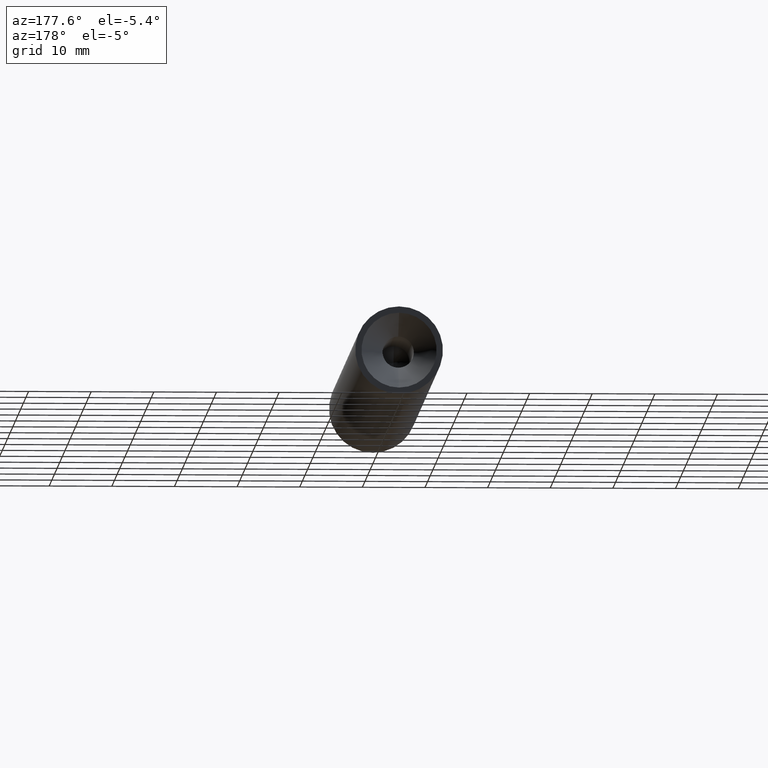
[diagram: clean part render]
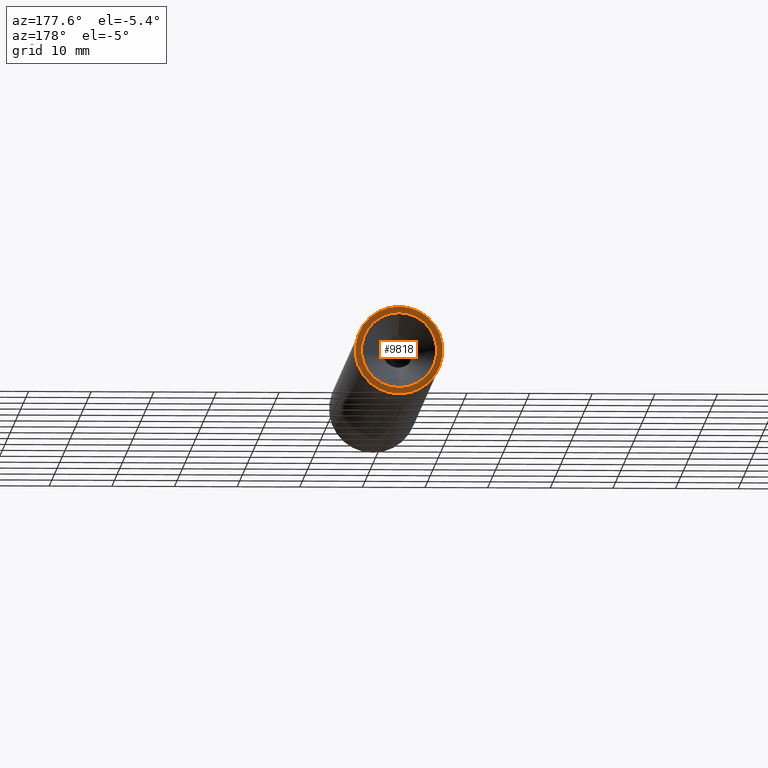
[diagram: same view with one face highlighted and labeled with its STEP entity id]
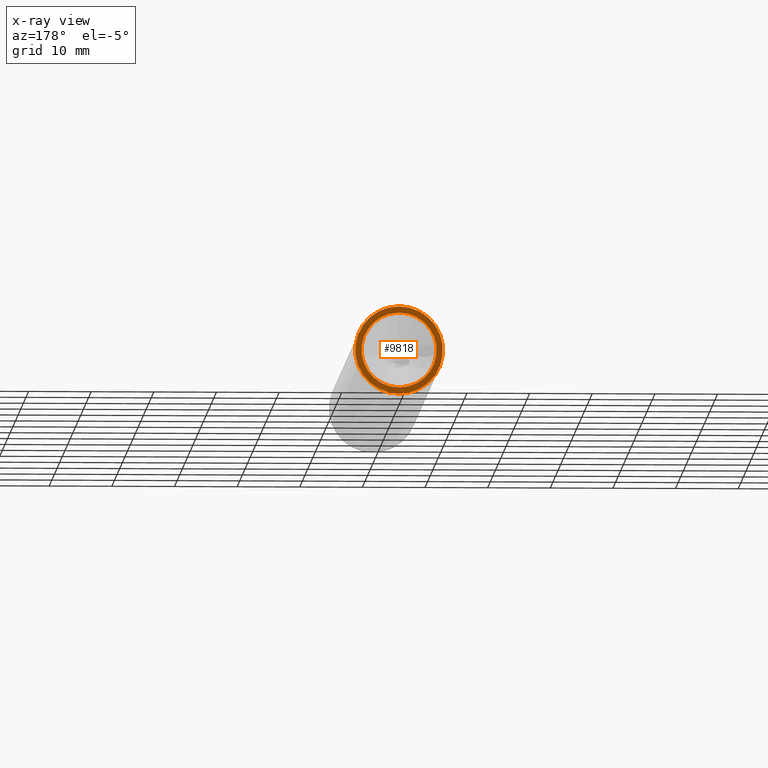
[diagram: x-ray of the same camera — body ghosted, the highlighted face saturated]
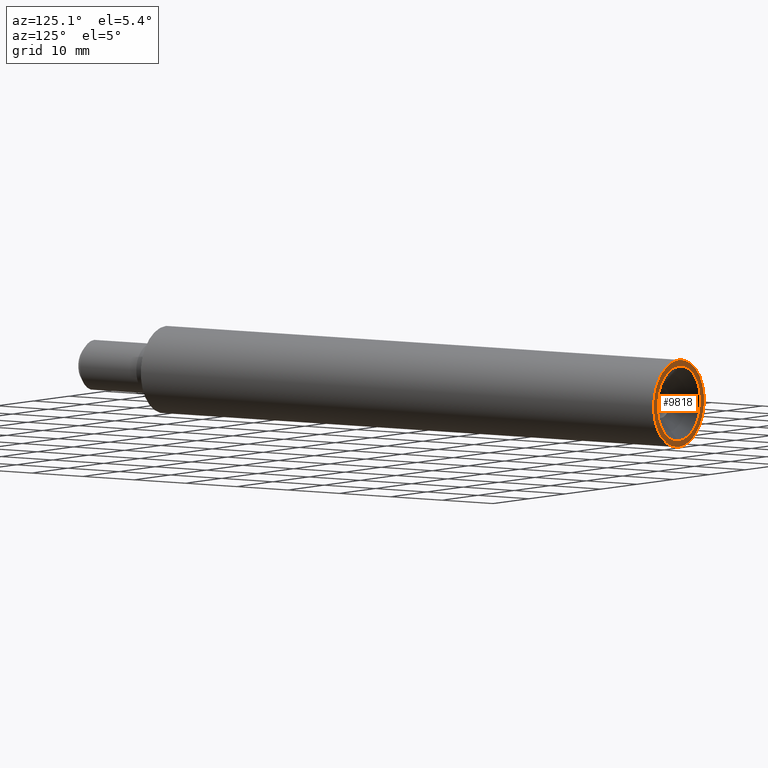
[diagram: same view with one face highlighted and labeled with its STEP entity id]
A machine part, auxiliary view. The second image highlights one B-rep face of the part: STEP entity #9818.
The next image is the same camera in x-ray: the body ghosted, the highlighted face saturated — about 0% of this face is hidden behind the body in this view.
A second angle (auxiliary view) of the same face is appended — the face is thin or edge-on in the first view.
In plain terms, the highlighted planar face has unit normal (0, 1, 0).
Its self-contained STEP definition (entity closure, byte-faithful):
#166 = DIRECTION ( 'NONE',  ( 0.0000000000000000000, -0.0000000000000000000, 1.000000000000000000 ) ) ;
#175 = CARTESIAN_POINT ( 'NONE',  ( 0.0000000000000000000, 100.0000000000000000, -7.000000000000000000 ) ) ;
#746 = CIRCLE ( 'NONE', #9085, 7.000000000000000000 ) ;
#1757 = DIRECTION ( 'NONE',  ( 0.0000000000000000000, 0.0000000000000000000, -1.000000000000000000 ) ) ;
#2145 = EDGE_CURVE ( 'NONE', #2601, #14009, #6279, .T. ) ;
#2184 = EDGE_LOOP ( 'NONE', ( #8451, #13473 ) ) ;
#2601 = VERTEX_POINT ( 'NONE', #175 ) ;
#3029 = EDGE_CURVE ( 'NONE', #9614, #14259, #6986, .T. ) ;
#3268 = CARTESIAN_POINT ( 'NONE',  ( 0.0000000000000000000, 100.0000000000000000, 0.0000000000000000000 ) ) ;
#3357 = CARTESIAN_POINT ( 'NONE',  ( 0.0000000000000000000, 100.0000000000000000, 0.0000000000000000000 ) ) ;
#3634 = AXIS2_PLACEMENT_3D ( 'NONE', #3357, #5986, #166 ) ;
#3709 = DIRECTION ( 'NONE',  ( 0.0000000000000000000, 0.0000000000000000000, 1.000000000000000000 ) ) ;
#4201 = EDGE_CURVE ( 'NONE', #14009, #2601, #746, .T. ) ;
#4751 = EDGE_LOOP ( 'NONE', ( #6326, #5666 ) ) ;
#5632 = FACE_BOUND ( 'NONE', #2184, .T. ) ;
#5666 = ORIENTED_EDGE ( 'NONE', *, *, #4201, .F. ) ;
#5986 = DIRECTION ( 'NONE',  ( 0.0000000000000000000, 1.000000000000000000, 0.0000000000000000000 ) ) ;
#6279 = CIRCLE ( 'NONE', #8879, 7.000000000000000000 ) ;
#6326 = ORIENTED_EDGE ( 'NONE', *, *, #2145, .F. ) ;
#6599 = DIRECTION ( 'NONE',  ( -0.0000000000000000000, 1.000000000000000000, -0.0000000000000000000 ) ) ;
#6657 = CARTESIAN_POINT ( 'NONE',  ( 7.347880794884119700E-016, 100.0000000000000000, -6.000000000000000000 ) ) ;
#6868 = EDGE_CURVE ( 'NONE', #14259, #9614, #8044, .T. ) ;
#6986 = CIRCLE ( 'NONE', #10887, 6.000000000000000000 ) ;
#7268 = AXIS2_PLACEMENT_3D ( 'NONE', #12156, #13342, #3709 ) ;
#7534 = DIRECTION ( 'NONE',  ( -0.0000000000000000000, -1.000000000000000000, -0.0000000000000000000 ) ) ;
#7773 = DIRECTION ( 'NONE',  ( 0.0000000000000000000, 0.0000000000000000000, 1.000000000000000000 ) ) ;
#8044 = CIRCLE ( 'NONE', #7268, 6.000000000000000000 ) ;
#8199 = DIRECTION ( 'NONE',  ( -0.0000000000000000000, -1.000000000000000000, -0.0000000000000000000 ) ) ;
#8451 = ORIENTED_EDGE ( 'NONE', *, *, #6868, .F. ) ;
#8879 = AXIS2_PLACEMENT_3D ( 'NONE', #11958, #7534, #1757 ) ;
#9085 = AXIS2_PLACEMENT_3D ( 'NONE', #9501, #8199, #9394 ) ;
#9394 = DIRECTION ( 'NONE',  ( 0.0000000000000000000, 0.0000000000000000000, -1.000000000000000000 ) ) ;
#9501 = CARTESIAN_POINT ( 'NONE',  ( 0.0000000000000000000, 100.0000000000000000, 0.0000000000000000000 ) ) ;
#9614 = VERTEX_POINT ( 'NONE', #6657 ) ;
#9818 = ADVANCED_FACE ( 'NONE', ( #5632, #10988 ), #12522, .T. ) ;
#10127 = CARTESIAN_POINT ( 'NONE',  ( 0.0000000000000000000, 100.0000000000000000, 6.000000000000000000 ) ) ;
#10887 = AXIS2_PLACEMENT_3D ( 'NONE', #3268, #6599, #7773 ) ;
#10988 = FACE_OUTER_BOUND ( 'NONE', #4751, .T. ) ;
#11958 = CARTESIAN_POINT ( 'NONE',  ( 0.0000000000000000000, 100.0000000000000000, 0.0000000000000000000 ) ) ;
#12156 = CARTESIAN_POINT ( 'NONE',  ( 0.0000000000000000000, 100.0000000000000000, 0.0000000000000000000 ) ) ;
#12522 = PLANE ( 'NONE',  #3634 ) ;
#12879 = CARTESIAN_POINT ( 'NONE',  ( 8.572527594031473200E-016, 100.0000000000000000, 7.000000000000000000 ) ) ;
#13342 = DIRECTION ( 'NONE',  ( -0.0000000000000000000, 1.000000000000000000, -0.0000000000000000000 ) ) ;
#13473 = ORIENTED_EDGE ( 'NONE', *, *, #3029, .F. ) ;
#14009 = VERTEX_POINT ( 'NONE', #12879 ) ;
#14259 = VERTEX_POINT ( 'NONE', #10127 ) ;